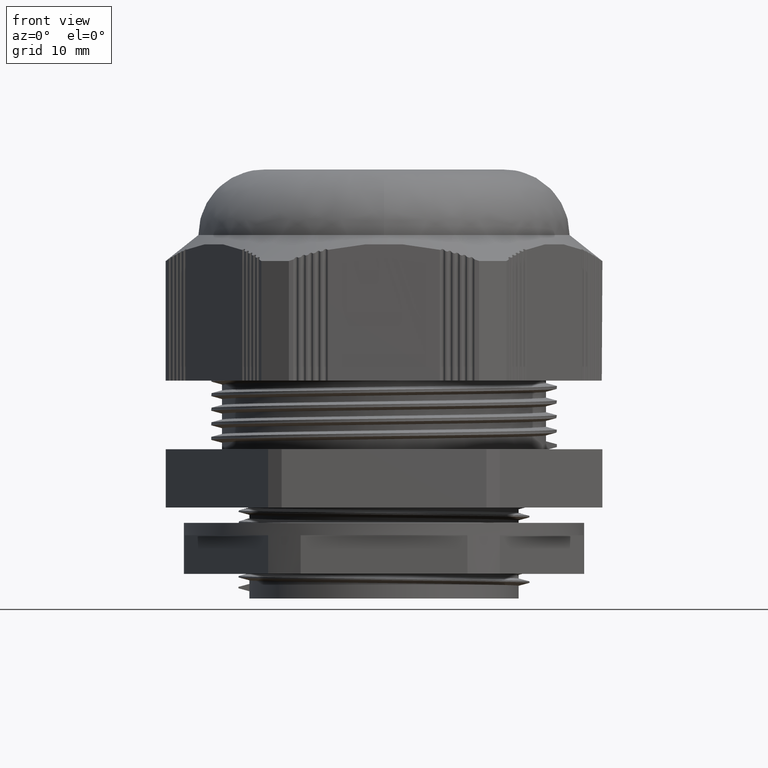
[diagram: clean part render]
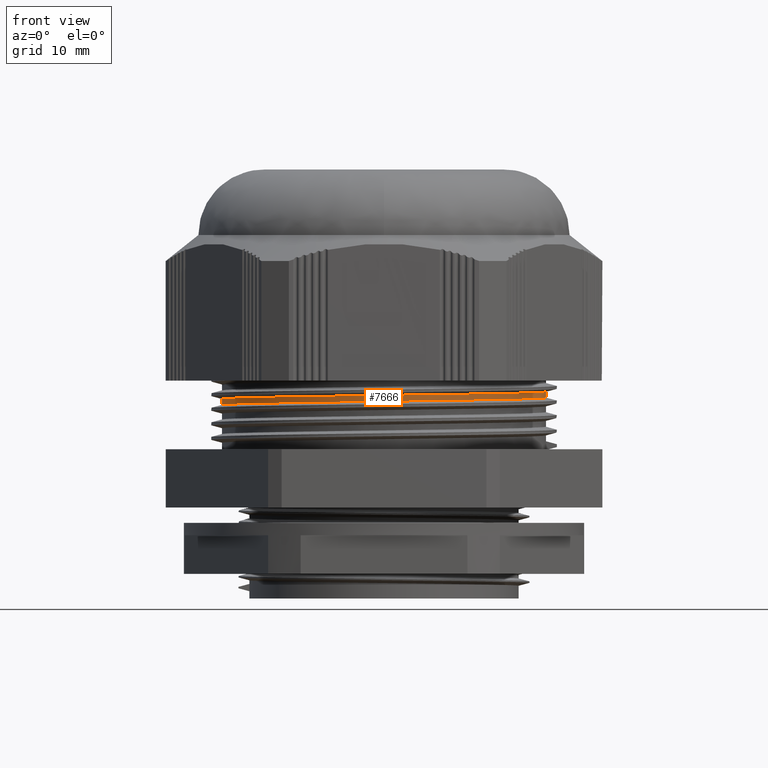
[diagram: same view with one face highlighted and labeled with its STEP entity id]
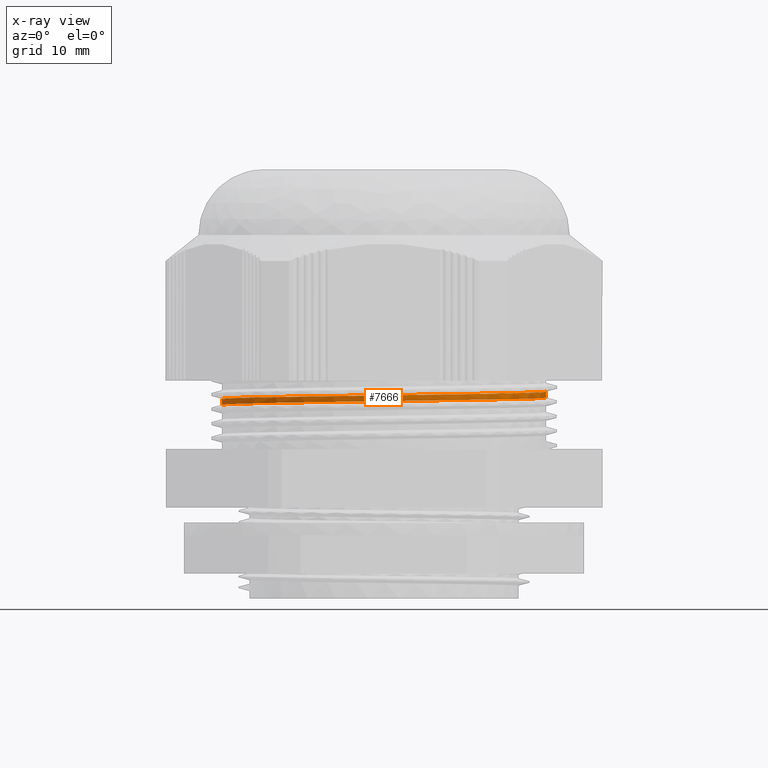
[diagram: x-ray of the same camera — body ghosted, the highlighted face saturated]
A machine part, front view. The second image highlights one B-rep face of the part: STEP entity #7666.
The next image is the same camera in x-ray: the body ghosted, the highlighted face saturated — about 0% of this face is hidden behind the body in this view.
In plain terms, the highlighted cylindrical surface (partial cylindrical patch) has radius 22.25 mm, axis along (-0, -0, -1).
Its self-contained STEP definition (entity closure, byte-faithful):
#139 = CARTESIAN_POINT ( 'NONE',  ( -22.25000000000000700, 3.508805416840376300E-012, 26.59999999999990200 ) ) ;
#167 = CARTESIAN_POINT ( 'NONE',  ( -22.25000000000000400, -1.456259094632774700, 26.62083333333327700 ) ) ;
#309 = CARTESIAN_POINT ( 'NONE',  ( -11.15060249985977900, -19.30925307827368100, 26.93333333333328700 ) ) ;
#310 = CARTESIAN_POINT ( 'NONE',  ( -7.169298398558620300, -21.11360582712307400, 26.99583333333329100 ) ) ;
#312 = CARTESIAN_POINT ( 'NONE',  ( -5.769037149328009500, -21.53837043326105800, 27.01666666666662700 ) ) ;
#313 = CARTESIAN_POINT ( 'NONE',  ( -2.912482180389700700, -22.10657454468270400, 27.05833333333329800 ) ) ;
#314 = CARTESIAN_POINT ( 'NONE',  ( -14.70339520042126900, -16.76285656238010400, 26.87083333333329100 ) ) ;
#322 = CARTESIAN_POINT ( 'NONE',  ( -9.860114341687889800, -19.99903336962919200, 26.95416666666662700 ) ) ;
#323 = CARTESIAN_POINT ( 'NONE',  ( -1.456259094632764900, -22.25000000000000700, 27.07916666666663400 ) ) ;
#326 = CARTESIAN_POINT ( 'NONE',  ( 1.456259094632772500, -22.25000000000000400, 27.12083333333329800 ) ) ;
#327 = CARTESIAN_POINT ( 'NONE',  ( 2.912482180389708300, -22.10657454468270100, 27.14166666666664100 ) ) ;
#328 = CARTESIAN_POINT ( 'NONE',  ( -21.53837043326105800, -5.769037149328018400, 26.68333333333328000 ) ) ;
#329 = CARTESIAN_POINT ( 'NONE',  ( 5.769037149328017500, -21.53837043326105400, 27.18333333333330900 ) ) ;
#330 = CARTESIAN_POINT ( 'NONE',  ( 7.169298398558628300, -21.11360582712307400, 27.20416666666664100 ) ) ;
#339 = CARTESIAN_POINT ( 'NONE',  ( -16.76285656238009700, -14.70339520042127600, 26.82916666666661600 ) ) ;
#349 = CARTESIAN_POINT ( 'NONE',  ( -22.10657454468269700, -2.912482180389710100, 26.64166666666660500 ) ) ;
#350 = CARTESIAN_POINT ( 'NONE',  ( -21.11360582712307400, -7.169298398558630900, 26.70416666666661200 ) ) ;
#351 = CARTESIAN_POINT ( 'NONE',  ( -19.99903336962917800, -9.860114341687893400, 26.74583333333328000 ) ) ;
#359 = CARTESIAN_POINT ( 'NONE',  ( -19.30925307827367000, -11.15060249985978500, 26.76666666666661200 ) ) ;
#364 = CARTESIAN_POINT ( 'NONE',  ( -17.69114466918959400, -13.57227286951251000, 26.80833333333328400 ) ) ;
#365 = CARTESIAN_POINT ( 'NONE',  ( -13.57227286951250800, -17.69114466918959400, 26.89166666666662300 ) ) ;
#374 = CARTESIAN_POINT ( 'NONE',  ( 17.69114466918958700, -13.57227286951251700, 27.39166666666665500 ) ) ;
#379 = CARTESIAN_POINT ( 'NONE',  ( 21.11360582712308100, -7.169298398558611400, 27.49583333333332600 ) ) ;
#392 = CARTESIAN_POINT ( 'NONE',  ( 21.53837043326106100, -5.769037149328000600, 27.51666666666666200 ) ) ;
#393 = CARTESIAN_POINT ( 'NONE',  ( 22.10657454468270100, -2.912482180389693600, 27.55833333333332600 ) ) ;
#394 = CARTESIAN_POINT ( 'NONE',  ( 16.76285656238010400, -14.70339520042127300, 27.37083333333332600 ) ) ;
#408 = CARTESIAN_POINT ( 'NONE',  ( 9.860114341687891600, -19.99903336962917800, 27.24583333333330500 ) ) ;
#409 = CARTESIAN_POINT ( 'NONE',  ( 13.57227286951251000, -17.69114466918959400, 27.30833333333331200 ) ) ;
#410 = CARTESIAN_POINT ( 'NONE',  ( 11.15060249985978500, -19.30925307827367700, 27.26666666666664400 ) ) ;
#411 = CARTESIAN_POINT ( 'NONE',  ( 19.99903336962919200, -9.860114341687875600, 27.45416666666665500 ) ) ;
#412 = CARTESIAN_POINT ( 'NONE',  ( 22.25000000000000700, -1.456259094632763600, 27.57916666666666200 ) ) ;
#413 = CARTESIAN_POINT ( 'NONE',  ( 22.25000000000000400, 6.063957900339685700E-016, 27.59999999999999400 ) ) ;
#419 = CARTESIAN_POINT ( 'NONE',  ( 19.30925307827368100, -11.15060249985979000, 27.43333333333331900 ) ) ;
#422 = CARTESIAN_POINT ( 'NONE',  ( 14.70339520042127800, -16.76285656238009000, 27.32916666666664800 ) ) ;
#448 = CARTESIAN_POINT ( 'NONE',  ( -22.24999999999999600, -3.919031968223205000E-013, 27.39999999999999100 ) ) ;
#451 = CARTESIAN_POINT ( 'NONE',  ( -22.24999999999894100, -7.229463241183760900, 27.50000000000003600 ) ) ;
#454 = CARTESIAN_POINT ( 'NONE',  ( -6.875628124842609900, -21.16100748756724300, 27.80000000000000100 ) ) ;
#455 = CARTESIAN_POINT ( 'NONE',  ( 6.875628124842597400, -21.16100748756724300, 28.00000000000000000 ) ) ;
#456 = CARTESIAN_POINT ( 'NONE',  ( 13.75125624968520200, -18.92698048583296000, 28.09999999999999100 ) ) ;
#457 = CARTESIAN_POINT ( 'NONE',  ( 18.00062812484264500, -13.07822186350757900, 28.19999999999999900 ) ) ;
#458 = CARTESIAN_POINT ( 'NONE',  ( 22.25000000000004600, -7.229463241182245700, 28.30000000000000100 ) ) ;
#468 = CARTESIAN_POINT ( 'NONE',  ( -18.00062812484264500, -13.07822186350757000, 27.60000000000001200 ) ) ;
#469 = CARTESIAN_POINT ( 'NONE',  ( -13.75125624968520400, -18.92698048583295600, 27.69999999999998900 ) ) ;
#470 = CARTESIAN_POINT ( 'NONE',  ( -7.001190565584913100E-015, -23.39503448930153000, 27.89999999999999900 ) ) ;
#505 = LINE ( 'NONE', #536, #9253 ) ;
#514 = CARTESIAN_POINT ( 'NONE',  ( 22.25000000000001400, 6.063957900339675800E-016, 28.39999999999997400 ) ) ;
#536 = CARTESIAN_POINT ( 'NONE',  ( -22.25000000000000400, 0.0000000000000000000, 36.50000000000000000 ) ) ;
#547 = DIRECTION ( 'NONE',  ( -0.0000000000000000000, -0.0000000000000000000, -1.000000000000000000 ) ) ;
#672 = CARTESIAN_POINT ( 'NONE',  ( 22.25000000000000400, 6.063957900339685700E-016, 27.59999999999999400 ) ) ;
#679 = CARTESIAN_POINT ( 'NONE',  ( 22.25000000000001400, 6.063957900339675800E-016, 28.39999999999997400 ) ) ;
#728 = CARTESIAN_POINT ( 'NONE',  ( -22.25000000000000700, 3.508805416840376300E-012, 26.59999999999990200 ) ) ;
#748 = CARTESIAN_POINT ( 'NONE',  ( -22.24999999999999600, -3.919031968223205000E-013, 27.39999999999999100 ) ) ;
#7666 = ADVANCED_FACE ( 'NONE', ( #15038 ), #15007, .T. ) ;
#8458 =( BOUNDED_CURVE ( )  B_SPLINE_CURVE ( 2, ( #448, #451, #468, #469, #454, #470, #455, #456, #457, #458, #514 ),
 .UNSPECIFIED., .F., .T. ) 
 B_SPLINE_CURVE_WITH_KNOTS ( ( 3, 2, 2, 2, 2, 3 ),
 ( 0.0000000000000000000, 0.1999999999999993700, 0.4000000000000003000, 0.5999999999999996400, 0.8000000000000006000, 1.000000000000000000 ),
 .UNSPECIFIED. ) 
 CURVE ( )  GEOMETRIC_REPRESENTATION_ITEM ( )  RATIONAL_B_SPLINE_CURVE ( ( 0.9999999999999874500, 0.9510565162951660800, 1.000000000000000000, 0.9510565162951535300, 1.000000000000000000, 0.9510565162951535300, 1.000000000000000000, 0.9510565162951535300, 1.000000000000000000, 0.9510565162951538600, 0.9999999999999996700 ) ) 
 REPRESENTATION_ITEM ( '' )  );
#9083 = VECTOR ( 'NONE', #22277, 1000.000000000000000 ) ;
#9253 = VECTOR ( 'NONE', #547, 1000.000000000000000 ) ;
#9723 = EDGE_CURVE ( 'NONE', #10513, #10524, #21424, .T. ) ;
#9922 = EDGE_CURVE ( 'NONE', #10573, #10524, #11606, .T. ) ;
#9936 = EDGE_CURVE ( 'NONE', #10585, #10513, #8458, .T. ) ;
#9942 = EDGE_CURVE ( 'NONE', #10585, #10573, #505, .T. ) ;
#10513 = VERTEX_POINT ( 'NONE', #679 ) ;
#10524 = VERTEX_POINT ( 'NONE', #672 ) ;
#10573 = VERTEX_POINT ( 'NONE', #728 ) ;
#10585 = VERTEX_POINT ( 'NONE', #748 ) ;
#11211 = ORIENTED_EDGE ( 'NONE', *, *, #9936, .F. ) ;
#11251 = ORIENTED_EDGE ( 'NONE', *, *, #9922, .T. ) ;
#11298 = ORIENTED_EDGE ( 'NONE', *, *, #9942, .T. ) ;
#11313 = ORIENTED_EDGE ( 'NONE', *, *, #9723, .F. ) ;
#11606 = B_SPLINE_CURVE_WITH_KNOTS ( 'NONE', 3,
 ( #139, #167, #349, #328, #350, #351, #359, #364, #339, #314, #365, #309, #322, #310, #312, #313, #323, #326, #327, #329, #330, #408, #410, #409, #422, #394, #374, #419, #411, #379, #392, #393, #412, #413 ),
 .UNSPECIFIED., .F., .F.,
 ( 4, 2, 2, 2, 2, 2, 2, 2, 2, 2, 2, 2, 2, 2, 2, 2, 4 ),
 ( 0.0000000000000000000, 0.06250000000000009700, 0.1250000000000001700, 0.1875000000000002200, 0.2500000000000002800, 0.3125000000000002800, 0.3750000000000002200, 0.4375000000000002200, 0.5000000000000002200, 0.5625000000000002200, 0.6250000000000002200, 0.6875000000000002200, 0.7500000000000001100, 0.8125000000000001100, 0.8750000000000001100, 0.9375000000000001100, 1.000000000000000000 ),
 .UNSPECIFIED. ) ;
#15007 = CYLINDRICAL_SURFACE ( 'NONE', #21346, 22.25000000000000400 ) ;
#15008 = CARTESIAN_POINT ( 'NONE',  ( 0.0000000000000000000, 0.0000000000000000000, 36.50000000000000000 ) ) ;
#15021 = DIRECTION ( 'NONE',  ( -0.0000000000000000000, -0.0000000000000000000, -1.000000000000000000 ) ) ;
#15037 = DIRECTION ( 'NONE',  ( -1.000000000000000000, 0.0000000000000000000, 0.0000000000000000000 ) ) ;
#15038 = FACE_OUTER_BOUND ( 'NONE', #16837, .T. ) ;
#16837 = EDGE_LOOP ( 'NONE', ( #11313, #11211, #11298, #11251 ) ) ;
#21346 = AXIS2_PLACEMENT_3D ( 'NONE', #15008, #15021, #15037 ) ;
#21424 = LINE ( 'NONE', #21665, #9083 ) ;
#21665 = CARTESIAN_POINT ( 'NONE',  ( 22.25000000000000400, 2.724839128102861000E-015, 36.50000000000000000 ) ) ;
#22277 = DIRECTION ( 'NONE',  ( -0.0000000000000000000, -0.0000000000000000000, -1.000000000000000000 ) ) ;